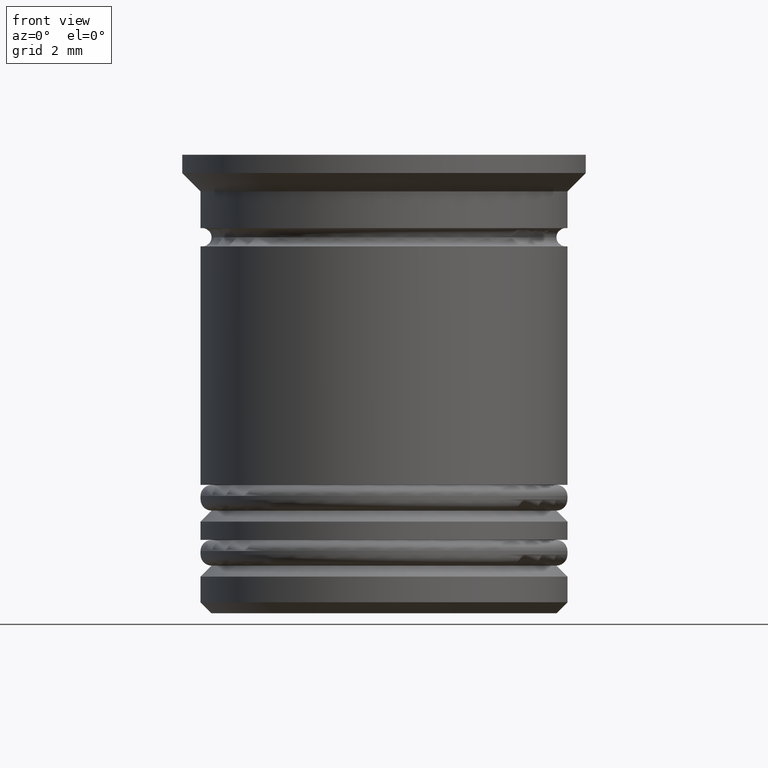
[diagram: clean part render]
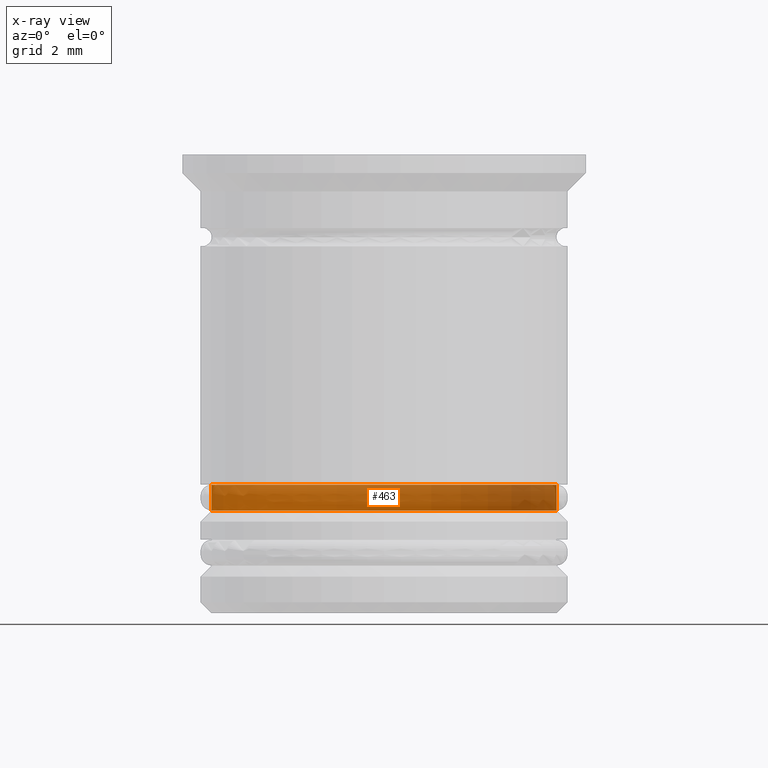
[diagram: x-ray — body ghosted, one internal face saturated and labeled with its STEP entity id]
A machine part, front view, then the same camera in x-ray: the body is ghosted and one INTERNAL B-rep face — a face not visible from any outside direction — is saturated and labeled: STEP entity #463.
In plain terms, the highlighted cylindrical surface (partial cylindrical patch) has radius 4.7 mm, axis along (-0, -0, 1).
Its self-contained STEP definition (entity closure, byte-faithful):
#32 = FACE_OUTER_BOUND ( 'NONE', #1519, .T. ) ;
#49 = AXIS2_PLACEMENT_3D ( 'NONE', #801, #504, #1955 ) ;
#65 = ORIENTED_EDGE ( 'NONE', *, *, #386, .T. ) ;
#86 = VECTOR ( 'NONE', #1492, 1000.000000000000000 ) ;
#133 = DIRECTION ( 'NONE',  ( -1.000000000000000000, 0.000000000000000000, 0.000000000000000000 ) ) ;
#149 = DIRECTION ( 'NONE',  ( 1.000000000000000000, 0.000000000000000000, 0.000000000000000000 ) ) ;
#176 = EDGE_CURVE ( 'NONE', #1021, #1827, #1360, .T. ) ;
#190 = AXIS2_PLACEMENT_3D ( 'NONE', #282, #579, #133 ) ;
#282 = CARTESIAN_POINT ( 'NONE',  ( 0.000000000000000000, 0.000000000000000000, -9.700000000000008171 ) ) ;
#300 = DIRECTION ( 'NONE',  ( -0.000000000000000000, -0.000000000000000000, 1.000000000000000000 ) ) ;
#380 = ORIENTED_EDGE ( 'NONE', *, *, #176, .T. ) ;
#386 = EDGE_CURVE ( 'NONE', #999, #1021, #1931, .T. ) ;
#397 = CARTESIAN_POINT ( 'NONE',  ( 4.700000000000001066, 0.000000000000000000, -9.700000000000008171 ) ) ;
#414 = ORIENTED_EDGE ( 'NONE', *, *, #1429, .F. ) ;
#442 = CARTESIAN_POINT ( 'NONE',  ( 4.700000000000001066, 0.000000000000000000, 0.000000000000000000 ) ) ;
#463 = ADVANCED_FACE ( 'NONE', ( #32 ), #1129, .T. ) ;
#504 = DIRECTION ( 'NONE',  ( -0.000000000000000000, -0.000000000000000000, 1.000000000000000000 ) ) ;
#579 = DIRECTION ( 'NONE',  ( -0.000000000000000000, -0.000000000000000000, 1.000000000000000000 ) ) ;
#588 = AXIS2_PLACEMENT_3D ( 'NONE', #1574, #300, #149 ) ;
#618 = DIRECTION ( 'NONE',  ( -0.000000000000000000, -0.000000000000000000, 1.000000000000000000 ) ) ;
#631 = ORIENTED_EDGE ( 'NONE', *, *, #774, .F. ) ;
#725 = CARTESIAN_POINT ( 'NONE',  ( -4.700000000000001066, 5.755839955992560641E-16, 0.000000000000000000 ) ) ;
#774 = EDGE_CURVE ( 'NONE', #901, #1827, #1504, .T. ) ;
#790 = CARTESIAN_POINT ( 'NONE',  ( -4.700000000000001066, 5.755839955992560641E-16, -9.700000000000008171 ) ) ;
#801 = CARTESIAN_POINT ( 'NONE',  ( 0.000000000000000000, 0.000000000000000000, 0.000000000000000000 ) ) ;
#901 = VERTEX_POINT ( 'NONE', #915 ) ;
#915 = CARTESIAN_POINT ( 'NONE',  ( 4.700000000000001066, 0.000000000000000000, -9.000000000000001776 ) ) ;
#999 = VERTEX_POINT ( 'NONE', #397 ) ;
#1021 = VERTEX_POINT ( 'NONE', #790 ) ;
#1129 = CYLINDRICAL_SURFACE ( 'NONE', #49, 4.700000000000001066 ) ;
#1360 = LINE ( 'NONE', #725, #86 ) ;
#1376 = CARTESIAN_POINT ( 'NONE',  ( -4.700000000000001066, 5.755839955992560641E-16, -9.000000000000001776 ) ) ;
#1429 = EDGE_CURVE ( 'NONE', #999, #901, #2059, .T. ) ;
#1492 = DIRECTION ( 'NONE',  ( -0.000000000000000000, -0.000000000000000000, 1.000000000000000000 ) ) ;
#1504 = CIRCLE ( 'NONE', #588, 4.700000000000001066 ) ;
#1519 = EDGE_LOOP ( 'NONE', ( #65, #380, #631, #414 ) ) ;
#1574 = CARTESIAN_POINT ( 'NONE',  ( 0.000000000000000000, 0.000000000000000000, -9.000000000000001776 ) ) ;
#1827 = VERTEX_POINT ( 'NONE', #1376 ) ;
#1931 = CIRCLE ( 'NONE', #190, 4.700000000000001066 ) ;
#1955 = DIRECTION ( 'NONE',  ( 1.000000000000000000, 0.000000000000000000, 0.000000000000000000 ) ) ;
#2059 = LINE ( 'NONE', #442, #2074 ) ;
#2074 = VECTOR ( 'NONE', #618, 1000.000000000000000 ) ;